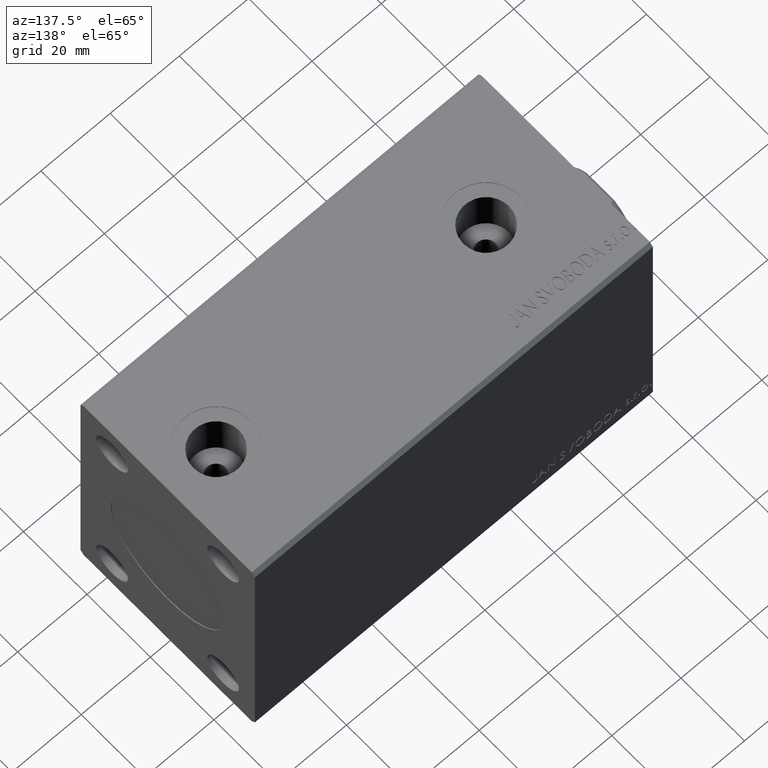
[diagram: clean part render]
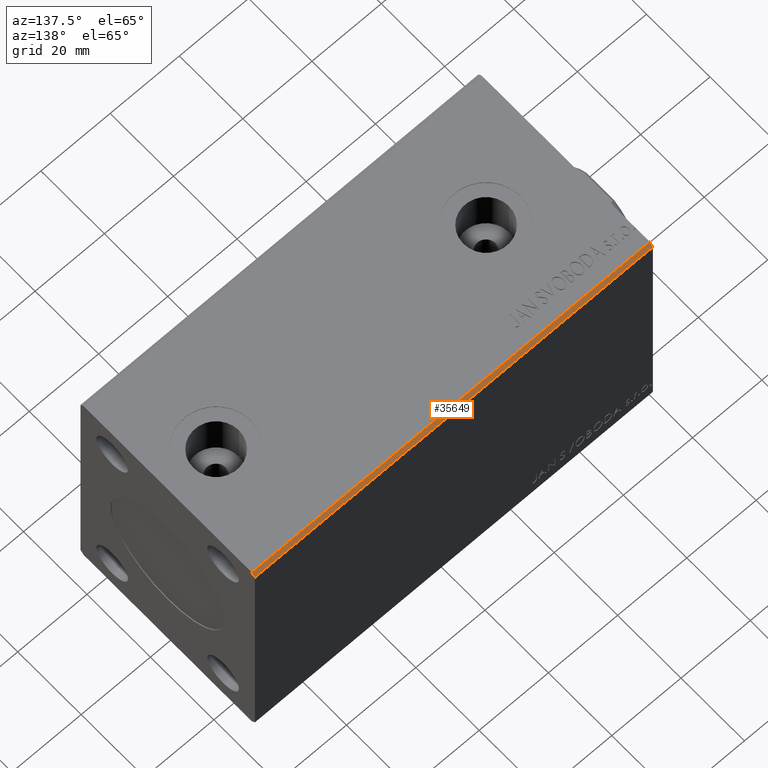
[diagram: same view with one face highlighted and labeled with its STEP entity id]
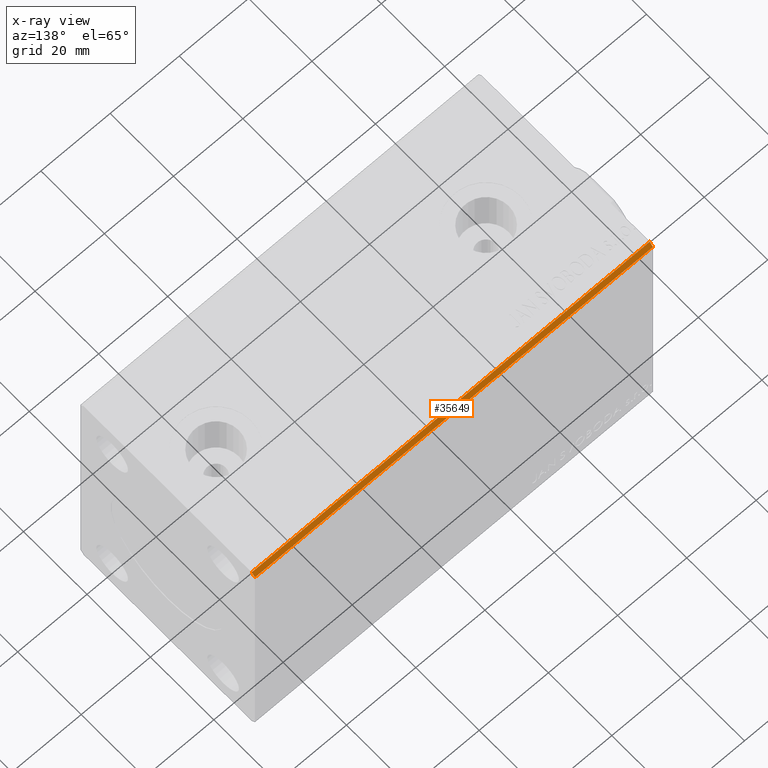
[diagram: x-ray of the same camera — body ghosted, the highlighted face saturated]
A machine part, auxiliary view. The second image highlights one B-rep face of the part: STEP entity #35649.
The next image is the same camera in x-ray: the body ghosted, the highlighted face saturated — about 0% of this face is hidden behind the body in this view.
In plain terms, the highlighted planar face has unit normal (0, -0.7071, -0.7071).
Its self-contained STEP definition (entity closure, byte-faithful):
#1529 = VERTEX_POINT ( 'NONE', #12129 ) ;
#1850 = VERTEX_POINT ( 'NONE', #34781 ) ;
#2575 = DIRECTION ( 'NONE',  ( 0.000000000000000000, -0.7071067811865474617, 0.7071067811865474617 ) ) ;
#4557 = CARTESIAN_POINT ( 'NONE',  ( 0.000000000000000000, 26.50000000000000355, 37.50000000000000711 ) ) ;
#5566 = EDGE_CURVE ( 'NONE', #1529, #27449, #29274, .T. ) ;
#6350 = CARTESIAN_POINT ( 'NONE',  ( 0.000000000000000000, 27.50000000000000355, 36.50000000000000711 ) ) ;
#6364 = CARTESIAN_POINT ( 'NONE',  ( 115.0000000000000000, 27.50000000000000355, 36.50000000000000711 ) ) ;
#9103 = FACE_OUTER_BOUND ( 'NONE', #36869, .T. ) ;
#9631 = ORIENTED_EDGE ( 'NONE', *, *, #32004, .T. ) ;
#11652 = VECTOR ( 'NONE', #12796, 1000.000000000000000 ) ;
#12129 = CARTESIAN_POINT ( 'NONE',  ( 115.0000000000000000, 26.50000000000000355, 37.50000000000000711 ) ) ;
#12796 = DIRECTION ( 'NONE',  ( -1.000000000000000000, -0.000000000000000000, -0.000000000000000000 ) ) ;
#14762 = DIRECTION ( 'NONE',  ( 0.000000000000000000, -0.7071067811865474617, 0.7071067811865474617 ) ) ;
#16960 = ORIENTED_EDGE ( 'NONE', *, *, #32841, .F. ) ;
#19570 = LINE ( 'NONE', #33142, #31559 ) ;
#21561 = ORIENTED_EDGE ( 'NONE', *, *, #27189, .T. ) ;
#22320 = VECTOR ( 'NONE', #14762, 1000.000000000000114 ) ;
#22889 = CARTESIAN_POINT ( 'NONE',  ( 115.0000000000000000, 27.50000000000000355, 36.50000000000000711 ) ) ;
#26904 = DIRECTION ( 'NONE',  ( -1.000000000000000000, -0.000000000000000000, -0.000000000000000000 ) ) ;
#27189 = EDGE_CURVE ( 'NONE', #1850, #27449, #35951, .T. ) ;
#27449 = VERTEX_POINT ( 'NONE', #4557 ) ;
#28331 = CARTESIAN_POINT ( 'NONE',  ( 115.0000000000000000, 27.50000000000000355, 36.50000000000000711 ) ) ;
#29274 = LINE ( 'NONE', #43267, #11652 ) ;
#29366 = DIRECTION ( 'NONE',  ( 0.000000000000000000, 0.7071067811865474617, -0.7071067811865474617 ) ) ;
#29576 = ORIENTED_EDGE ( 'NONE', *, *, #5566, .F. ) ;
#31559 = VECTOR ( 'NONE', #26904, 1000.000000000000000 ) ;
#32004 = EDGE_CURVE ( 'NONE', #38677, #1850, #19570, .T. ) ;
#32841 = EDGE_CURVE ( 'NONE', #38677, #1529, #41891, .T. ) ;
#33142 = CARTESIAN_POINT ( 'NONE',  ( 115.0000000000000000, 27.50000000000000355, 36.50000000000000711 ) ) ;
#34781 = CARTESIAN_POINT ( 'NONE',  ( 0.000000000000000000, 27.50000000000000355, 36.50000000000000711 ) ) ;
#35649 = ADVANCED_FACE ( 'NONE', ( #9103 ), #43345, .F. ) ;
#35951 = LINE ( 'NONE', #6350, #43507 ) ;
#36467 = DIRECTION ( 'NONE',  ( 0.000000000000000000, -0.7071067811865475727, -0.7071067811865475727 ) ) ;
#36869 = EDGE_LOOP ( 'NONE', ( #21561, #29576, #16960, #9631 ) ) ;
#37736 = AXIS2_PLACEMENT_3D ( 'NONE', #22889, #36467, #29366 ) ;
#38677 = VERTEX_POINT ( 'NONE', #6364 ) ;
#41891 = LINE ( 'NONE', #28331, #22320 ) ;
#43267 = CARTESIAN_POINT ( 'NONE',  ( 115.0000000000000000, 26.50000000000000355, 37.50000000000000711 ) ) ;
#43345 = PLANE ( 'NONE',  #37736 ) ;
#43507 = VECTOR ( 'NONE', #2575, 1000.000000000000114 ) ;